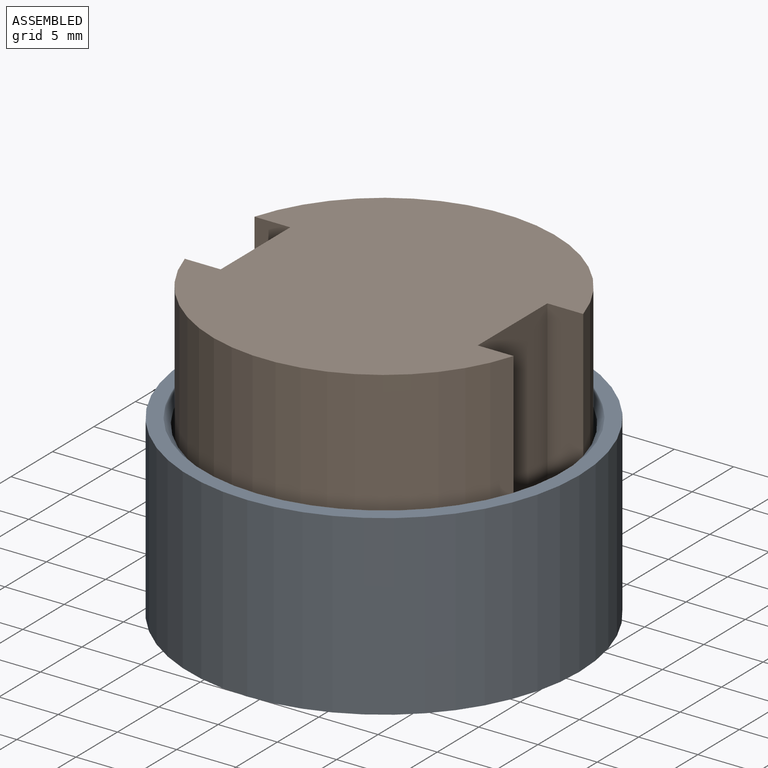
[diagram: assembled view]
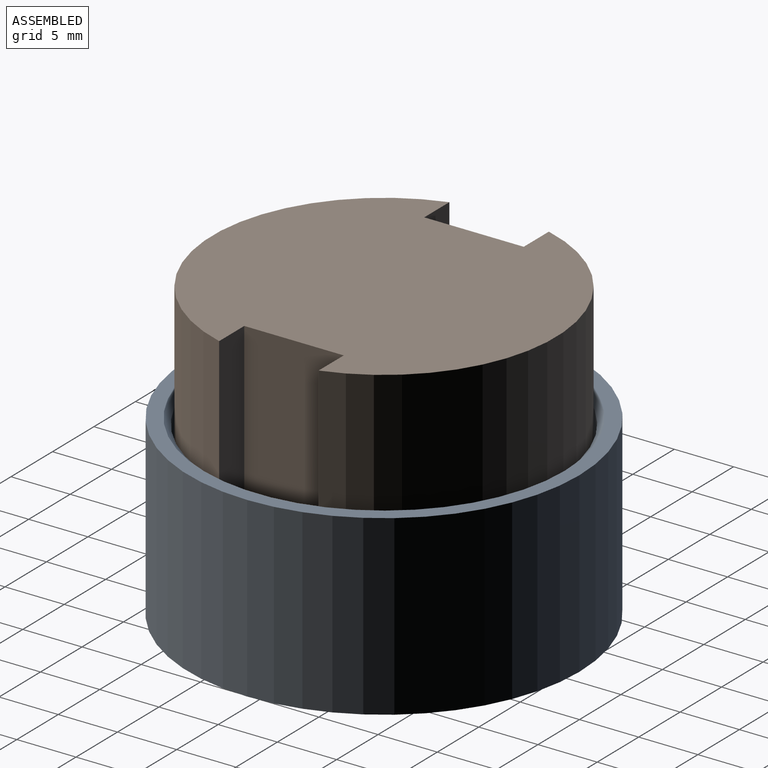
[diagram: assembled view, second angle]
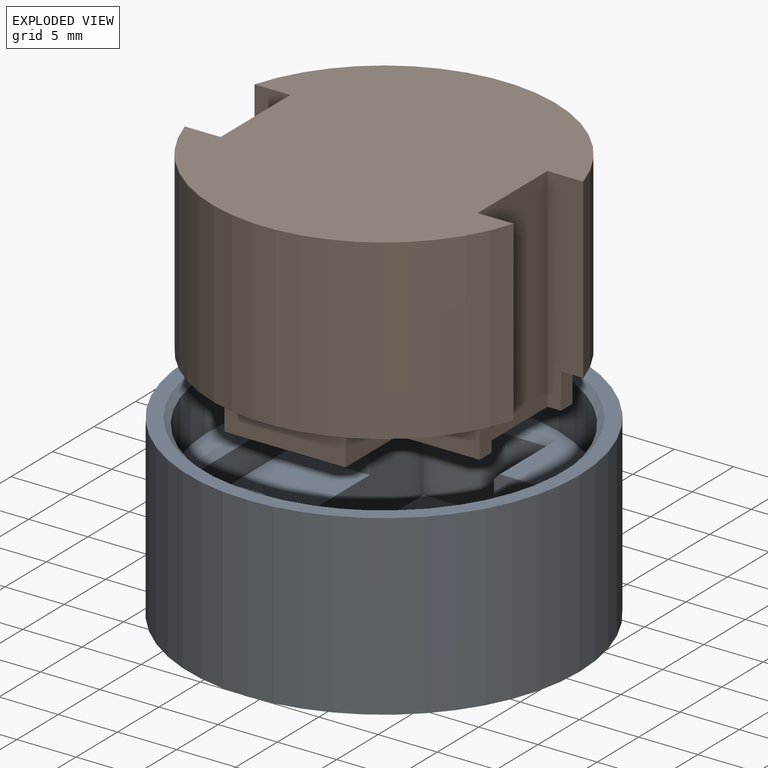
[diagram: exploded view]
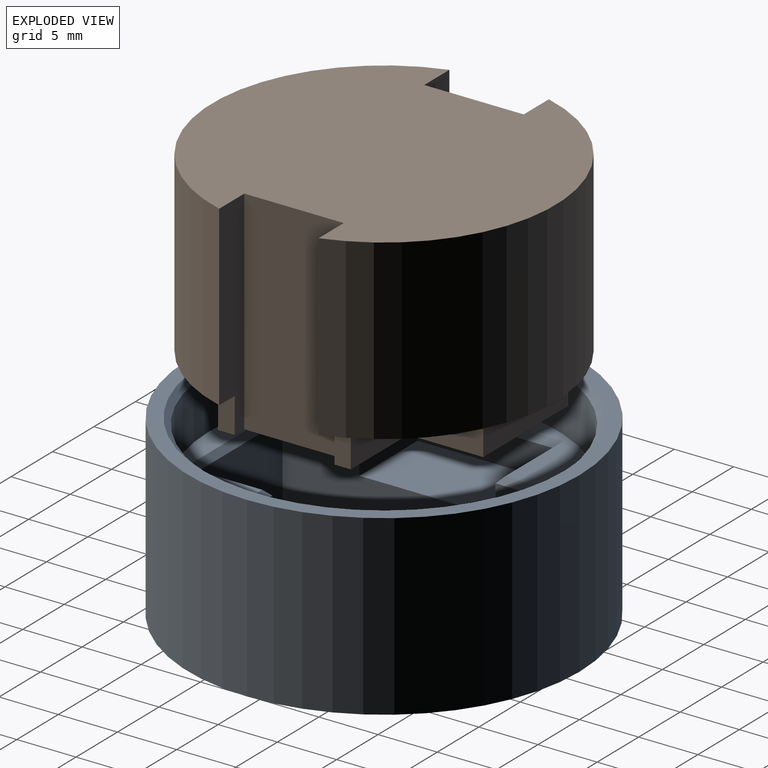
[diagram: exploded view, second angle]
ASSEMBLY  parts=2 mates=3
PART A: 34 faces, bbox 33x33x15 mm
  f0: plane 29.5x29.5mm, normal (0,0,1), area 218.7mm2, adj f15,f20,f22,f23,f24,f25,f26,f27
  f1: plane 10.61x10.5mm, normal (0,0,1), area 81.7mm2, adj f2,f3,f8,f19
  f2: plane 24.5x6.75mm, normal (0,-1,0), area 131mm2, adj f1,f7,f8,f9,f14,f15,f16,f19
  f3: plane 24.5x6.75mm, normal (0,1,0), area 131mm2, adj f1,f7,f8,f9,f10,f11,f12,f19
  f4: cylinder r=5mm len=10mm, axis (0,0,-1), area 62.8mm2, adj f18,f19
  f5: cylinder r=16.5mm len=33mm, axis (0,0,-1), area 1555.1mm2, adj f6,f21
  f6: plane 33x33mm, normal (0,0,-1), area 760.3mm2, adj f5,f18
  f7: plane 10.61x10.5mm, normal (0,0,1), area 81.7mm2, adj f2,f3,f9,f19
  f8: plane 10.5x6.5mm, normal (-1,0,0), area 68.3mm2, adj f1,f2,f3,f25
  f9: plane 10.5x6.5mm, normal (1,0,0), area 68.3mm2, adj f2,f3,f7,f32
  f10: plane 11.5x7mm, normal (0,0,1), area 80.5mm2, adj f3,f11,f12,f13
  f11: plane 7x2.5mm, normal (1,0,0), area 17.5mm2, adj f3,f10,f13,f29
  f12: plane 7x2.5mm, normal (-1,0,0), area 17.5mm2, adj f3,f10,f13,f27
  f13: plane 11.5x2.5mm, normal (0,1,0), area 28.7mm2, adj f10,f11,f12,f28
  f14: plane 7x2.5mm, normal (-1,0,0), area 17.5mm2, adj f2,f16,f17,f23
  f15: plane 7.5x3mm, normal (1,0,0), area 21mm2, adj f0,f2,f16,f17,f22,f30
  f16: plane 11.5x7mm, normal (0,0,1), area 80.5mm2, adj f2,f14,f15,f17
  f17: plane 11.5x2.5mm, normal (0,-1,0), area 28.7mm2, adj f14,f15,f16,f22
  f18: cone r=5.5mm half-angle=45deg, axis (0,0,-1), area 23.3mm2, adj f4,f6
  f19: cone r=5mm half-angle=45deg, axis (0,0,1), area 21.8mm2, adj f1,f2,f3,f4,f7
  f20: cylinder r=14.75mm len=29.5mm, axis (0,0,-1), area 417mm2, adj f0,f33
  f21: plane 33x33mm, normal (0,0,1), area 124.7mm2, adj f5,f33
  f22: plane 12x0.5mm, normal (0,-0.71,0.71), area 8.3mm2, adj f0,f15,f17,f23
  f23: plane 7.5x0.5mm, normal (-0.71,0,0.71), area 4.9mm2, adj f0,f14,f22,f24
  f24: plane 7x0.5mm, normal (0,-0.71,0.71), area 4.6mm2, adj f0,f2,f23,f25
  f25: plane 11.5x0.5mm, normal (-0.71,0,0.71), area 7.8mm2, adj f0,f8,f24,f26
  f26: plane 7x0.5mm, normal (0,0.71,0.71), area 4.6mm2, adj f0,f3,f25,f27
  f27: plane 7.5x0.5mm, normal (-0.71,0,0.71), area 4.9mm2, adj f0,f12,f26,f28
  f28: plane 12.5x0.5mm, normal (0,0.71,0.71), area 8.5mm2, adj f0,f13,f27,f29
  f29: plane 7.5x0.5mm, normal (0.71,0,0.71), area 4.9mm2, adj f0,f11,f28,f31
  f30: plane 7x0.5mm, normal (0,-0.71,0.71), area 4.8mm2, adj f0,f2,f15,f32
  f31: plane 7x0.5mm, normal (0,0.71,0.71), area 4.6mm2, adj f0,f3,f29,f32
  f32: plane 11.5x0.5mm, normal (0.71,0,0.71), area 7.8mm2, adj f0,f9,f30,f31
  f33: cone r=14.75mm half-angle=45deg, axis (0,0,1), area 66.6mm2, adj f20,f21
PART B: 26 faces, bbox 27.8x29x18 mm
  f0: plane 27.76x10.3mm, normal (0,0,-1), area 111.8mm2, adj f2,f5,f11,f12,f13,f14,f15,f16
  f1: plane 27.76x10.3mm, normal (0,0,-1), area 111.8mm2, adj f3,f6,f8,f9,f10,f17,f18,f19
  f2: cylinder r=14.5mm len=27.76mm, axis (0,0,-1), area 555.5mm2, adj f0,f4,f22,f23
  f3: cylinder r=14.5mm len=27.76mm, axis (0,0,-1), area 555.5mm2, adj f1,f4,f20,f25
  f4: plane 29x27.76mm, normal (0,0,1), area 602.7mm2, adj f2,f3,f20,f21,f22,f23,f24,f25
  f5: plane 3x1.4mm, normal (1,0,0), area 4.2mm2, adj f0,f7,f11,f23
  f6: plane 3x1.4mm, normal (-1,0,0), area 4.2mm2, adj f1,f7,f17,f20
  f7: plane 24x23.9mm, normal (0,0,-1), area 379mm2, adj f5,f6,f8,f9,f10,f11,f12,f13
  f8: plane 6.35x3mm, normal (1,0,0), area 19.1mm2, adj f1,f7,f9,f19
  f9: plane 6.9x3mm, normal (0,1,0), area 20.7mm2, adj f1,f7,f8,f10
  f10: plane 3x1.4mm, normal (1,0,0), area 4.2mm2, adj f1,f7,f9,f25
  f11: plane 6.9x3mm, normal (0,-1,0), area 20.7mm2, adj f0,f5,f7,f12
  f12: plane 6.35x3mm, normal (1,0,0), area 19.1mm2, adj f0,f7,f11,f13
  f13: plane 10.2x3mm, normal (0,-1,0), area 30.6mm2, adj f0,f7,f12,f14
  f14: plane 6.35x3mm, normal (-1,0,0), area 19.1mm2, adj f0,f7,f13,f15
  f15: plane 6.9x3mm, normal (0,-1,0), area 20.7mm2, adj f0,f7,f14,f16
  f16: plane 3x1.4mm, normal (-1,0,0), area 4.2mm2, adj f0,f7,f15,f22
  f17: plane 6.9x3mm, normal (0,1,0), area 20.7mm2, adj f1,f6,f7,f18
  f18: plane 6.35x3mm, normal (-1,0,0), area 19.1mm2, adj f1,f7,f17,f19
  f19: plane 10.2x3mm, normal (0,1,0), area 30.6mm2, adj f1,f7,f8,f18
  f20: plane 18x3.03mm, normal (0,-1,0), area 48.9mm2, adj f1,f3,f4,f6,f7,f21
  f21: plane 18x8.4mm, normal (-1,0,0), area 151.2mm2, adj f4,f7,f20,f22
  f22: plane 18x3.03mm, normal (0,1,0), area 48.9mm2, adj f0,f2,f4,f7,f16,f21
  f23: plane 18x3.03mm, normal (0,1,0), area 48.9mm2, adj f0,f2,f4,f5,f7,f24
  f24: plane 18x8.4mm, normal (1,0,0), area 151.2mm2, adj f4,f7,f23,f25
  f25: plane 18x3.03mm, normal (0,-1,0), area 48.9mm2, adj f1,f3,f4,f7,f10,f24
PLACE A rot(axis=(0,0,-1),90deg) t=(0,0,-10)mm
PLACE B at identity fixed
MATE planar B.f0 <-> A.f0  axis (0,0,-1) through (0,-9.38,0)mm
MATE cylindrical B.f2 <-> A.f5  axis (0,0,-1) through (0,0,7.5)mm
MATE parallel B.f12 <-> A.f2  axis (1,0,0) through (5.1,-8.78,-3)mm
